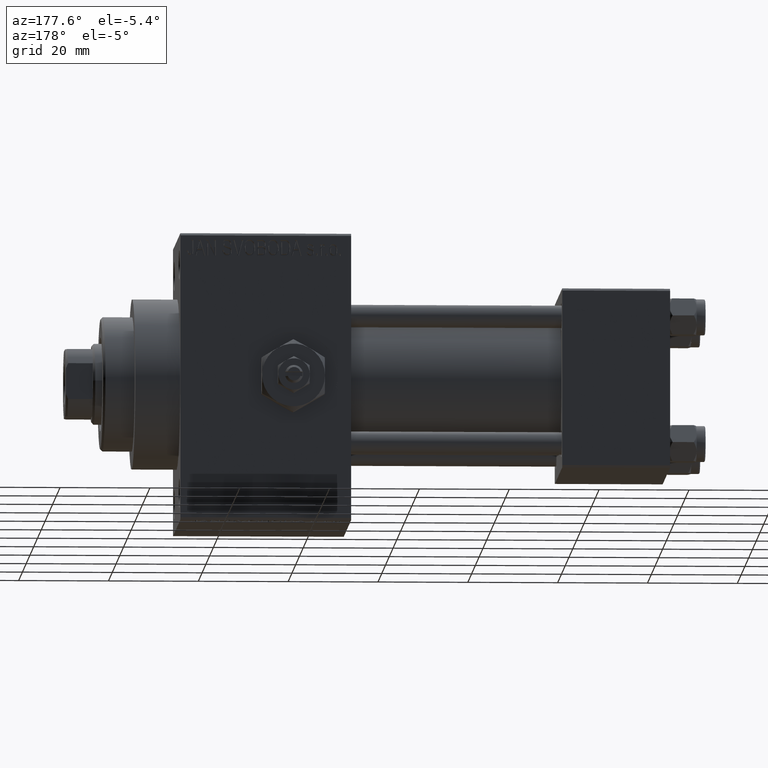
[diagram: clean part render]
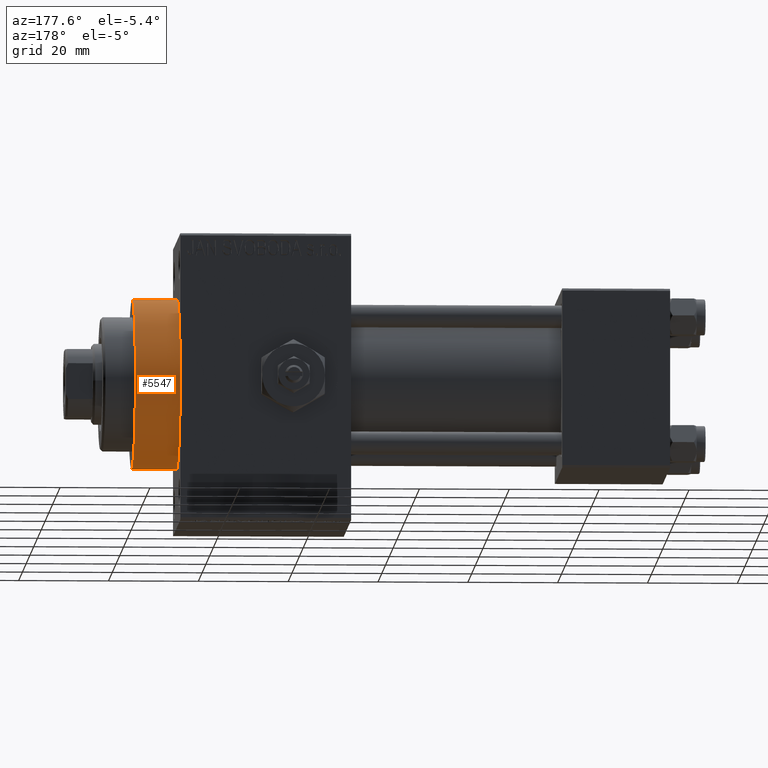
[diagram: same view with one face highlighted and labeled with its STEP entity id]
A machine part, auxiliary view. The second image highlights one B-rep face of the part: STEP entity #5547.
In plain terms, the highlighted cylindrical surface (partial cylindrical patch) has radius 19 mm, axis along (-1, -0, -0).
Its self-contained STEP definition (entity closure, byte-faithful):
#2834 = DIRECTION ( 'NONE',  ( 0.000000000000000000, 0.000000000000000000, 1.000000000000000000 ) ) ;
#3531 = DIRECTION ( 'NONE',  ( 1.000000000000000000, 0.000000000000000000, 0.000000000000000000 ) ) ;
#3874 = ORIENTED_EDGE ( 'NONE', *, *, #12551, .F. ) ;
#4674 = VERTEX_POINT ( 'NONE', #20267 ) ;
#5204 = CARTESIAN_POINT ( 'NONE',  ( 109.0000000000000142, 0.000000000000000000, 19.00000000000000000 ) ) ;
#5546 = CARTESIAN_POINT ( 'NONE',  ( 119.0000000000000142, 0.000000000000000000, 0.000000000000000000 ) ) ;
#5547 = ADVANCED_FACE ( 'NONE', ( #36560 ), #5800, .T. ) ;
#5800 = CYLINDRICAL_SURFACE ( 'NONE', #18358, 19.00000000000000000 ) ;
#6790 = LINE ( 'NONE', #32884, #20229 ) ;
#10668 = VERTEX_POINT ( 'NONE', #5204 ) ;
#12551 = EDGE_CURVE ( 'NONE', #4674, #31705, #15337, .T. ) ;
#15219 = CARTESIAN_POINT ( 'NONE',  ( 109.0000000000000142, 2.326828918379970970E-15, -19.00000000000000000 ) ) ;
#15337 = CIRCLE ( 'NONE', #42837, 19.00000000000000000 ) ;
#17458 = DIRECTION ( 'NONE',  ( 1.000000000000000000, 0.000000000000000000, 0.000000000000000000 ) ) ;
#17583 = LINE ( 'NONE', #39250, #19139 ) ;
#18358 = AXIS2_PLACEMENT_3D ( 'NONE', #5546, #20553, #2834 ) ;
#18632 = ORIENTED_EDGE ( 'NONE', *, *, #45673, .T. ) ;
#19139 = VECTOR ( 'NONE', #31609, 1000.000000000000000 ) ;
#20111 = EDGE_CURVE ( 'NONE', #31705, #10668, #6790, .T. ) ;
#20229 = VECTOR ( 'NONE', #29185, 1000.000000000000000 ) ;
#20267 = CARTESIAN_POINT ( 'NONE',  ( 119.0000000000000142, 2.326828918379970970E-15, -19.00000000000000000 ) ) ;
#20541 = EDGE_LOOP ( 'NONE', ( #3874, #18632, #22244, #29897 ) ) ;
#20553 = DIRECTION ( 'NONE',  ( -1.000000000000000000, -0.000000000000000000, -0.000000000000000000 ) ) ;
#22244 = ORIENTED_EDGE ( 'NONE', *, *, #34066, .T. ) ;
#24339 = DIRECTION ( 'NONE',  ( 0.000000000000000000, 0.000000000000000000, -1.000000000000000000 ) ) ;
#28708 = VERTEX_POINT ( 'NONE', #15219 ) ;
#29185 = DIRECTION ( 'NONE',  ( -1.000000000000000000, -0.000000000000000000, -0.000000000000000000 ) ) ;
#29897 = ORIENTED_EDGE ( 'NONE', *, *, #20111, .F. ) ;
#30257 = CARTESIAN_POINT ( 'NONE',  ( 119.0000000000000142, 0.000000000000000000, 19.00000000000000000 ) ) ;
#31609 = DIRECTION ( 'NONE',  ( -1.000000000000000000, -0.000000000000000000, -0.000000000000000000 ) ) ;
#31705 = VERTEX_POINT ( 'NONE', #30257 ) ;
#32884 = CARTESIAN_POINT ( 'NONE',  ( 119.0000000000000142, 0.000000000000000000, 19.00000000000000000 ) ) ;
#34066 = EDGE_CURVE ( 'NONE', #28708, #10668, #41801, .T. ) ;
#36560 = FACE_OUTER_BOUND ( 'NONE', #20541, .T. ) ;
#39250 = CARTESIAN_POINT ( 'NONE',  ( 119.0000000000000142, 2.326828918379970970E-15, -19.00000000000000000 ) ) ;
#40004 = CARTESIAN_POINT ( 'NONE',  ( 109.0000000000000142, 0.000000000000000000, 0.000000000000000000 ) ) ;
#40241 = DIRECTION ( 'NONE',  ( 0.000000000000000000, 0.000000000000000000, -1.000000000000000000 ) ) ;
#41801 = CIRCLE ( 'NONE', #44969, 19.00000000000000000 ) ;
#42837 = AXIS2_PLACEMENT_3D ( 'NONE', #43057, #17458, #24339 ) ;
#43057 = CARTESIAN_POINT ( 'NONE',  ( 119.0000000000000142, 0.000000000000000000, 0.000000000000000000 ) ) ;
#44969 = AXIS2_PLACEMENT_3D ( 'NONE', #40004, #3531, #40241 ) ;
#45673 = EDGE_CURVE ( 'NONE', #4674, #28708, #17583, .T. ) ;